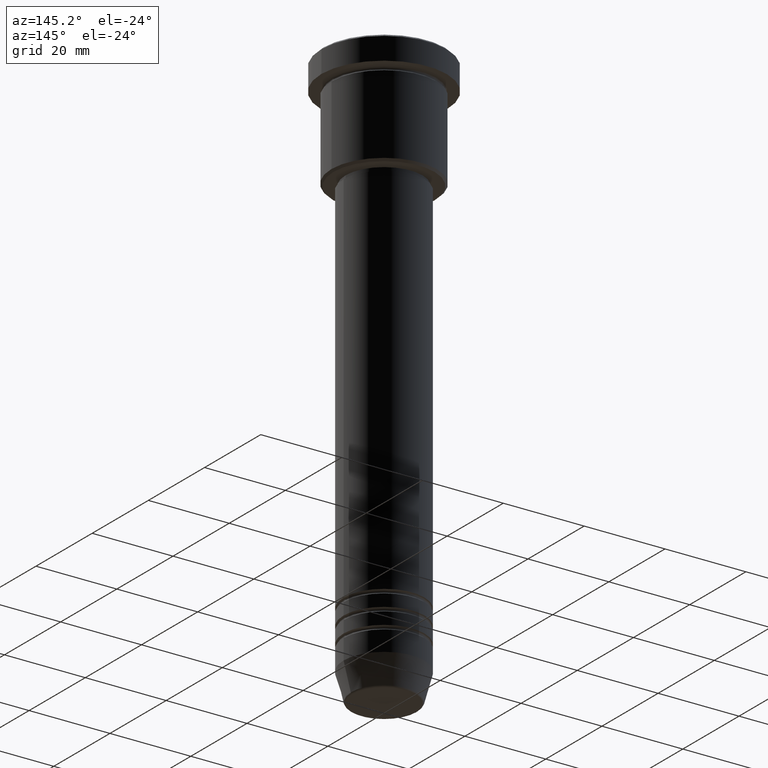
[diagram: clean part render]
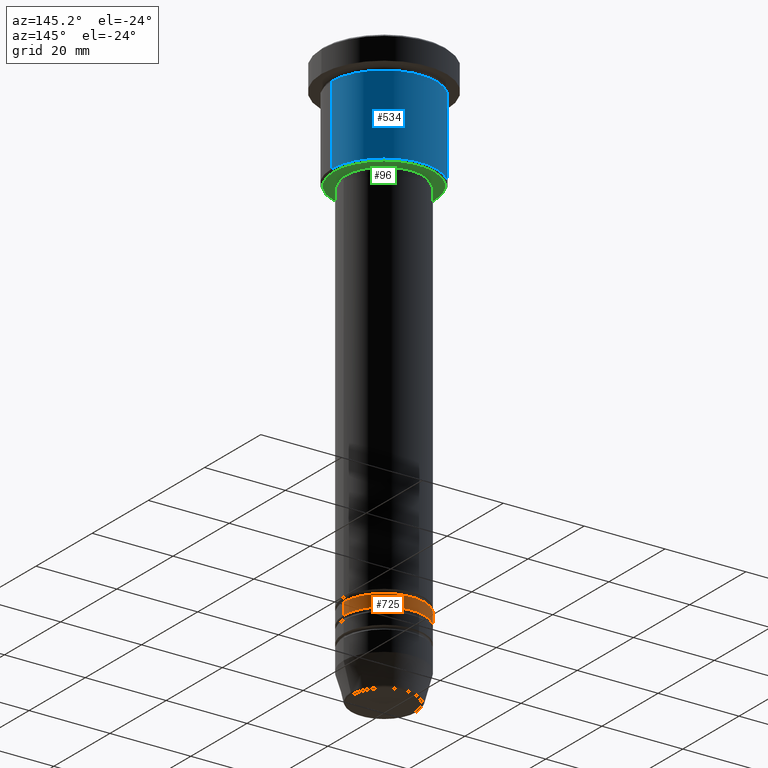
[diagram: same view with three faces highlighted in distinct colors, each labeled with its STEP entity id]
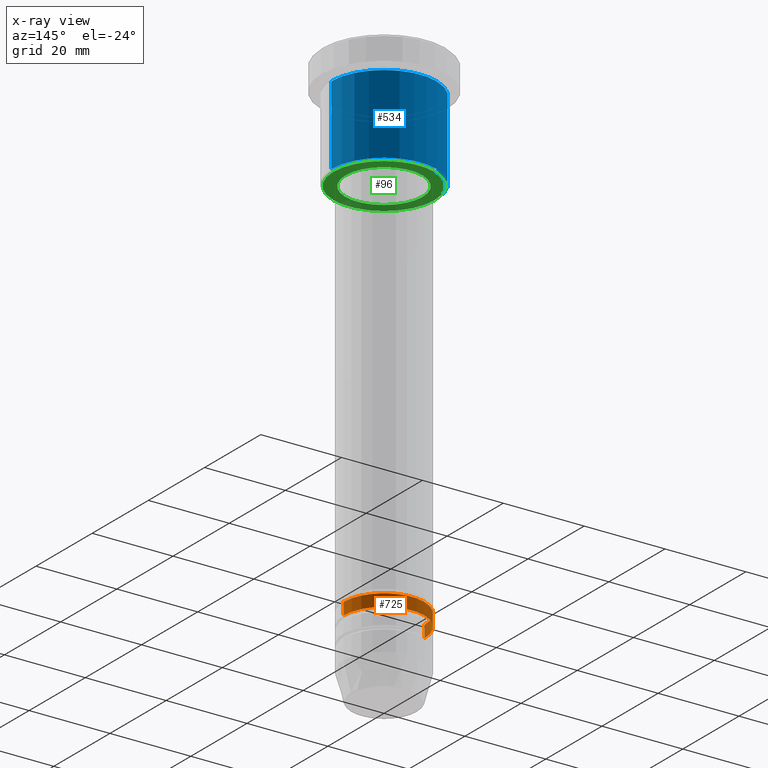
[diagram: x-ray of the same camera — body ghosted, the three highlighted faces saturated]
A machine part, auxiliary view with three faces highlighted in distinct colors.
The next image is the same camera in x-ray (body ghosted, the three faces saturated) — at least one of them is partly hidden behind the body in this view.
Their STEP definitions:

[orange] entity #725 — the highlighted cylindrical surface (partial cylindrical patch) has radius 10 mm, axis along (-0, -0, 1).
#1 = CARTESIAN_POINT ( 'NONE',  ( -10.00000000000000178, 1.224646799147353454E-15, 0.000000000000000000 ) ) ;
#22 = VECTOR ( 'NONE', #98, 1000.000000000000000 ) ;
#40 = ORIENTED_EDGE ( 'NONE', *, *, #157, .T. ) ;
#46 = CIRCLE ( 'NONE', #587, 10.00000000000000178 ) ;
#62 = CARTESIAN_POINT ( 'NONE',  ( 10.00000000000000000, 0.000000000000000000, -121.9999999999999005 ) ) ;
#98 = DIRECTION ( 'NONE',  ( -0.000000000000000000, -0.000000000000000000, 1.000000000000000000 ) ) ;
#139 = CARTESIAN_POINT ( 'NONE',  ( 0.000000000000000000, 0.000000000000000000, -121.9999999999999005 ) ) ;
#143 = AXIS2_PLACEMENT_3D ( 'NONE', #139, #511, #751 ) ;
#157 = EDGE_CURVE ( 'NONE', #474, #1033, #471, .T. ) ;
#169 = CARTESIAN_POINT ( 'NONE',  ( -10.00000000000000000, 1.224646799147353256E-15, -121.9999999999999005 ) ) ;
#184 = CARTESIAN_POINT ( 'NONE',  ( 0.000000000000000000, 0.000000000000000000, 0.000000000000000000 ) ) ;
#193 = DIRECTION ( 'NONE',  ( -0.000000000000000000, -0.000000000000000000, 1.000000000000000000 ) ) ;
#198 = EDGE_CURVE ( 'NONE', #621, #1047, #1028, .T. ) ;
#316 = AXIS2_PLACEMENT_3D ( 'NONE', #184, #553, #465 ) ;
#367 = DIRECTION ( 'NONE',  ( -0.000000000000000000, -0.000000000000000000, 1.000000000000000000 ) ) ;
#448 = CARTESIAN_POINT ( 'NONE',  ( -10.00000000000000178, 1.224646799147353454E-15, -124.9999999999999147 ) ) ;
#465 = DIRECTION ( 'NONE',  ( 1.000000000000000000, 0.000000000000000000, 0.000000000000000000 ) ) ;
#471 = LINE ( 'NONE', #1, #22 ) ;
#474 = VERTEX_POINT ( 'NONE', #448 ) ;
#511 = DIRECTION ( 'NONE',  ( -0.000000000000000000, -0.000000000000000000, 1.000000000000000000 ) ) ;
#553 = DIRECTION ( 'NONE',  ( -0.000000000000000000, -0.000000000000000000, 1.000000000000000000 ) ) ;
#559 = EDGE_LOOP ( 'NONE', ( #693, #40, #809, #1046 ) ) ;
#561 = FACE_OUTER_BOUND ( 'NONE', #559, .T. ) ;
#587 = AXIS2_PLACEMENT_3D ( 'NONE', #914, #367, #1001 ) ;
#621 = VERTEX_POINT ( 'NONE', #747 ) ;
#693 = ORIENTED_EDGE ( 'NONE', *, *, #1059, .T. ) ;
#725 = ADVANCED_FACE ( 'NONE', ( #561 ), #930, .T. ) ;
#747 = CARTESIAN_POINT ( 'NONE',  ( 10.00000000000000178, 0.000000000000000000, -124.9999999999999147 ) ) ;
#751 = DIRECTION ( 'NONE',  ( 1.000000000000000000, 0.000000000000000000, 0.000000000000000000 ) ) ;
#759 = CIRCLE ( 'NONE', #143, 10.00000000000000000 ) ;
#809 = ORIENTED_EDGE ( 'NONE', *, *, #1053, .F. ) ;
#851 = VECTOR ( 'NONE', #193, 1000.000000000000000 ) ;
#914 = CARTESIAN_POINT ( 'NONE',  ( 0.000000000000000000, 0.000000000000000000, -124.9999999999999147 ) ) ;
#930 = CYLINDRICAL_SURFACE ( 'NONE', #316, 10.00000000000000178 ) ;
#1001 = DIRECTION ( 'NONE',  ( 1.000000000000000000, 0.000000000000000000, 0.000000000000000000 ) ) ;
#1019 = CARTESIAN_POINT ( 'NONE',  ( 10.00000000000000178, 0.000000000000000000, 0.000000000000000000 ) ) ;
#1028 = LINE ( 'NONE', #1019, #851 ) ;
#1033 = VERTEX_POINT ( 'NONE', #169 ) ;
#1046 = ORIENTED_EDGE ( 'NONE', *, *, #198, .F. ) ;
#1047 = VERTEX_POINT ( 'NONE', #62 ) ;
#1053 = EDGE_CURVE ( 'NONE', #1047, #1033, #759, .T. ) ;
#1059 = EDGE_CURVE ( 'NONE', #621, #474, #46, .T. ) ;

[blue] entity #534 — the highlighted cylindrical surface (partial cylindrical patch) has radius 13 mm, axis along (-0, -0, 1).
#31 = LINE ( 'NONE', #573, #798 ) ;
#64 = CIRCLE ( 'NONE', #140, 13.00000000000000178 ) ;
#83 = AXIS2_PLACEMENT_3D ( 'NONE', #905, #785, #1148 ) ;
#94 = DIRECTION ( 'NONE',  ( -0.000000000000000000, -0.000000000000000000, 1.000000000000000000 ) ) ;
#99 = VERTEX_POINT ( 'NONE', #715 ) ;
#140 = AXIS2_PLACEMENT_3D ( 'NONE', #373, #94, #739 ) ;
#167 = ORIENTED_EDGE ( 'NONE', *, *, #841, .T. ) ;
#223 = VERTEX_POINT ( 'NONE', #562 ) ;
#241 = CARTESIAN_POINT ( 'NONE',  ( 0.000000000000000000, 0.000000000000000000, -6.999999999999995559 ) ) ;
#260 = CYLINDRICAL_SURFACE ( 'NONE', #83, 13.00000000000000178 ) ;
#265 = EDGE_CURVE ( 'NONE', #281, #223, #64, .T. ) ;
#281 = VERTEX_POINT ( 'NONE', #837 ) ;
#373 = CARTESIAN_POINT ( 'NONE',  ( 0.000000000000000000, 0.000000000000000000, -26.50000000000000355 ) ) ;
#423 = LINE ( 'NONE', #1151, #567 ) ;
#430 = DIRECTION ( 'NONE',  ( -0.000000000000000000, -0.000000000000000000, 1.000000000000000000 ) ) ;
#496 = EDGE_CURVE ( 'NONE', #99, #687, #1007, .T. ) ;
#534 = ADVANCED_FACE ( 'NONE', ( #791 ), #260, .T. ) ;
#562 = CARTESIAN_POINT ( 'NONE',  ( -13.00000000000000178, 1.592040838891559293E-15, -26.50000000000000355 ) ) ;
#565 = EDGE_LOOP ( 'NONE', ( #874, #167, #1005, #1150 ) ) ;
#567 = VECTOR ( 'NONE', #981, 1000.000000000000000 ) ;
#573 = CARTESIAN_POINT ( 'NONE',  ( -13.00000000000000178, 1.592040838891559293E-15, 0.000000000000000000 ) ) ;
#687 = VERTEX_POINT ( 'NONE', #1018 ) ;
#715 = CARTESIAN_POINT ( 'NONE',  ( 13.00000000000000178, 0.000000000000000000, -6.999999999999995559 ) ) ;
#739 = DIRECTION ( 'NONE',  ( -1.000000000000000000, 0.000000000000000000, 0.000000000000000000 ) ) ;
#785 = DIRECTION ( 'NONE',  ( -0.000000000000000000, -0.000000000000000000, 1.000000000000000000 ) ) ;
#791 = FACE_OUTER_BOUND ( 'NONE', #565, .T. ) ;
#798 = VECTOR ( 'NONE', #1048, 1000.000000000000000 ) ;
#816 = AXIS2_PLACEMENT_3D ( 'NONE', #241, #430, #888 ) ;
#837 = CARTESIAN_POINT ( 'NONE',  ( 13.00000000000000178, 0.000000000000000000, -26.50000000000000355 ) ) ;
#841 = EDGE_CURVE ( 'NONE', #223, #687, #31, .T. ) ;
#874 = ORIENTED_EDGE ( 'NONE', *, *, #265, .T. ) ;
#888 = DIRECTION ( 'NONE',  ( 1.000000000000000000, 0.000000000000000000, 0.000000000000000000 ) ) ;
#905 = CARTESIAN_POINT ( 'NONE',  ( 0.000000000000000000, 0.000000000000000000, 0.000000000000000000 ) ) ;
#981 = DIRECTION ( 'NONE',  ( -0.000000000000000000, -0.000000000000000000, 1.000000000000000000 ) ) ;
#1005 = ORIENTED_EDGE ( 'NONE', *, *, #496, .F. ) ;
#1007 = CIRCLE ( 'NONE', #816, 13.00000000000000178 ) ;
#1018 = CARTESIAN_POINT ( 'NONE',  ( -13.00000000000000178, 1.592040838891559293E-15, -6.999999999999995559 ) ) ;
#1022 = EDGE_CURVE ( 'NONE', #281, #99, #423, .T. ) ;
#1048 = DIRECTION ( 'NONE',  ( -0.000000000000000000, -0.000000000000000000, 1.000000000000000000 ) ) ;
#1148 = DIRECTION ( 'NONE',  ( 1.000000000000000000, 0.000000000000000000, 0.000000000000000000 ) ) ;
#1150 = ORIENTED_EDGE ( 'NONE', *, *, #1022, .F. ) ;
#1151 = CARTESIAN_POINT ( 'NONE',  ( 13.00000000000000178, 0.000000000000000000, 0.000000000000000000 ) ) ;

[green] entity #96 — the highlighted planar face has unit normal (0, 0, -1).
#10 = DIRECTION ( 'NONE',  ( 1.000000000000000000, 0.000000000000000000, 0.000000000000000000 ) ) ;
#20 = ORIENTED_EDGE ( 'NONE', *, *, #168, .T. ) ;
#45 = AXIS2_PLACEMENT_3D ( 'NONE', #1040, #588, #208 ) ;
#82 = AXIS2_PLACEMENT_3D ( 'NONE', #901, #999, #176 ) ;
#96 = ADVANCED_FACE ( 'NONE', ( #995, #440 ), #341, .T. ) ;
#117 = VERTEX_POINT ( 'NONE', #263 ) ;
#168 = EDGE_CURVE ( 'NONE', #1051, #935, #638, .T. ) ;
#176 = DIRECTION ( 'NONE',  ( -1.000000000000000000, 0.000000000000000000, -0.000000000000000000 ) ) ;
#208 = DIRECTION ( 'NONE',  ( -1.000000000000000000, 0.000000000000000000, 0.000000000000000000 ) ) ;
#263 = CARTESIAN_POINT ( 'NONE',  ( 12.49999999999999822, 0.000000000000000000, -26.99999999999999645 ) ) ;
#341 = PLANE ( 'NONE',  #82 ) ;
#343 = ORIENTED_EDGE ( 'NONE', *, *, #828, .T. ) ;
#372 = CARTESIAN_POINT ( 'NONE',  ( 0.000000000000000000, 0.000000000000000000, -26.99999999999998934 ) ) ;
#394 = CIRCLE ( 'NONE', #876, 9.500000000000001776 ) ;
#400 = EDGE_CURVE ( 'NONE', #117, #467, #873, .T. ) ;
#420 = EDGE_LOOP ( 'NONE', ( #869, #343 ) ) ;
#440 = FACE_BOUND ( 'NONE', #533, .T. ) ;
#467 = VERTEX_POINT ( 'NONE', #704 ) ;
#478 = DIRECTION ( 'NONE',  ( -0.000000000000000000, -0.000000000000000000, 1.000000000000000000 ) ) ;
#482 = CARTESIAN_POINT ( 'NONE',  ( 0.000000000000000000, 0.000000000000000000, -26.99999999999998934 ) ) ;
#529 = CIRCLE ( 'NONE', #45, 12.49999999999999822 ) ;
#533 = EDGE_LOOP ( 'NONE', ( #783, #20 ) ) ;
#588 = DIRECTION ( 'NONE',  ( 0.000000000000000000, 0.000000000000000000, -1.000000000000000000 ) ) ;
#617 = CARTESIAN_POINT ( 'NONE',  ( 9.500000000000001776, 0.000000000000000000, -26.99999999999998934 ) ) ;
#622 = AXIS2_PLACEMENT_3D ( 'NONE', #1055, #1135, #668 ) ;
#638 = CIRCLE ( 'NONE', #917, 9.500000000000001776 ) ;
#668 = DIRECTION ( 'NONE',  ( -1.000000000000000000, 0.000000000000000000, 0.000000000000000000 ) ) ;
#704 = CARTESIAN_POINT ( 'NONE',  ( -12.49999999999999822, 1.561424668912875308E-15, -26.99999999999999645 ) ) ;
#736 = DIRECTION ( 'NONE',  ( -0.000000000000000000, -0.000000000000000000, 1.000000000000000000 ) ) ;
#749 = EDGE_CURVE ( 'NONE', #935, #1051, #394, .T. ) ;
#783 = ORIENTED_EDGE ( 'NONE', *, *, #749, .T. ) ;
#828 = EDGE_CURVE ( 'NONE', #467, #117, #529, .T. ) ;
#869 = ORIENTED_EDGE ( 'NONE', *, *, #400, .T. ) ;
#873 = CIRCLE ( 'NONE', #622, 12.49999999999999822 ) ;
#876 = AXIS2_PLACEMENT_3D ( 'NONE', #372, #736, #1101 ) ;
#901 = CARTESIAN_POINT ( 'NONE',  ( 0.000000000000000000, 13.00000000000000000, -26.99999999999999645 ) ) ;
#917 = AXIS2_PLACEMENT_3D ( 'NONE', #482, #478, #10 ) ;
#935 = VERTEX_POINT ( 'NONE', #617 ) ;
#995 = FACE_OUTER_BOUND ( 'NONE', #420, .T. ) ;
#999 = DIRECTION ( 'NONE',  ( 0.000000000000000000, 0.000000000000000000, -1.000000000000000000 ) ) ;
#1040 = CARTESIAN_POINT ( 'NONE',  ( 0.000000000000000000, 0.000000000000000000, -26.99999999999999645 ) ) ;
#1051 = VERTEX_POINT ( 'NONE', #1158 ) ;
#1055 = CARTESIAN_POINT ( 'NONE',  ( 0.000000000000000000, 0.000000000000000000, -26.99999999999999645 ) ) ;
#1101 = DIRECTION ( 'NONE',  ( 1.000000000000000000, 0.000000000000000000, 0.000000000000000000 ) ) ;
#1135 = DIRECTION ( 'NONE',  ( 0.000000000000000000, 0.000000000000000000, -1.000000000000000000 ) ) ;
#1158 = CARTESIAN_POINT ( 'NONE',  ( -9.500000000000001776, 1.163414459189985682E-15, -26.99999999999998934 ) ) ;